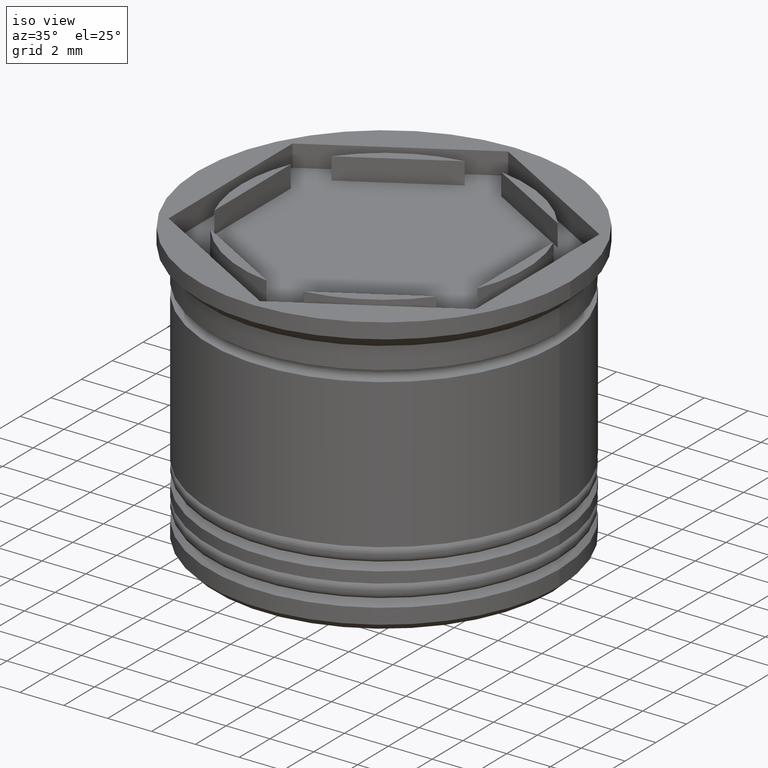
[diagram: clean part render]
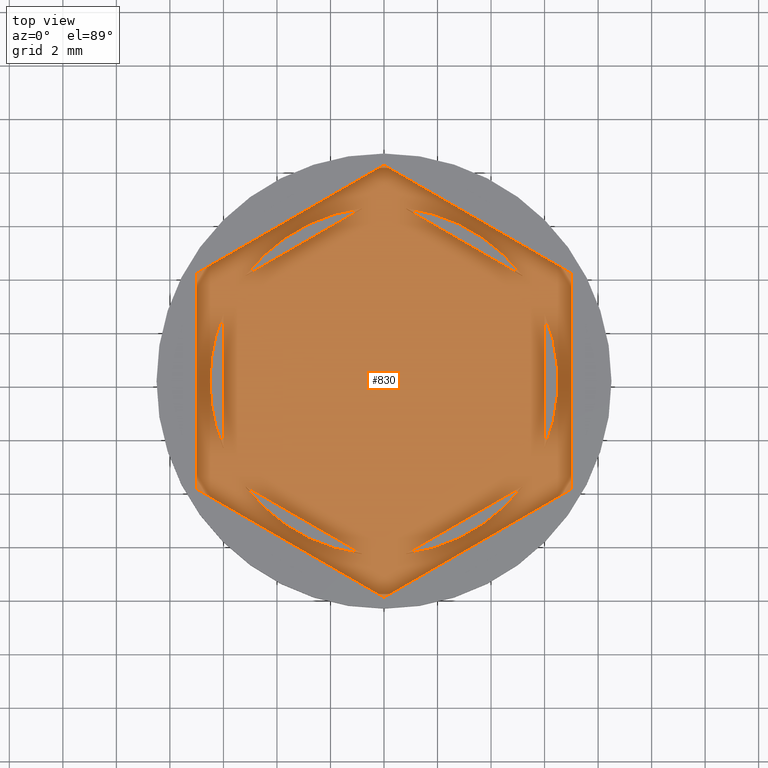
[diagram: tour spotlight — one face highlighted and labeled with its STEP entity id]
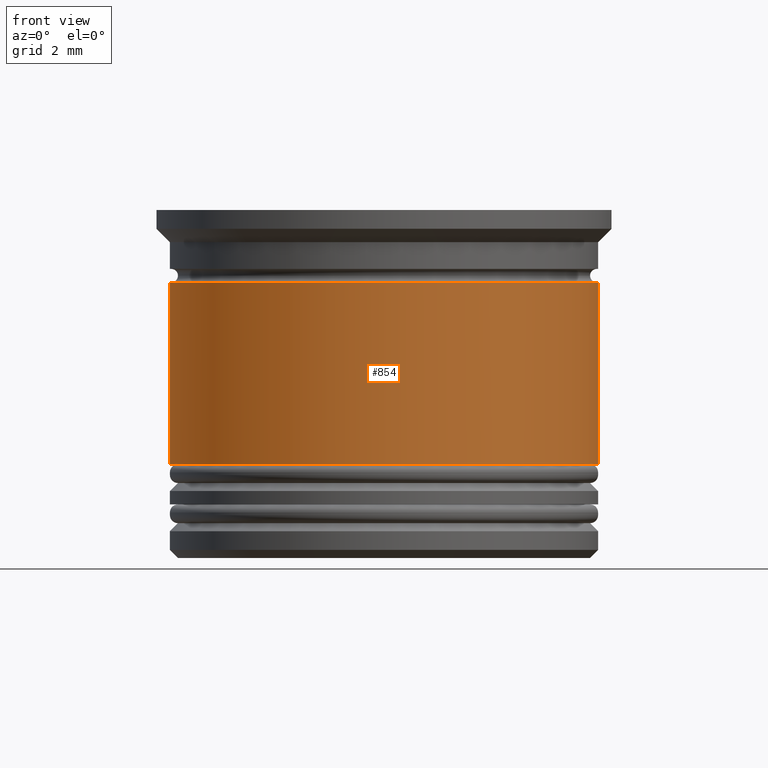
[diagram: tour spotlight — one face highlighted and labeled with its STEP entity id]
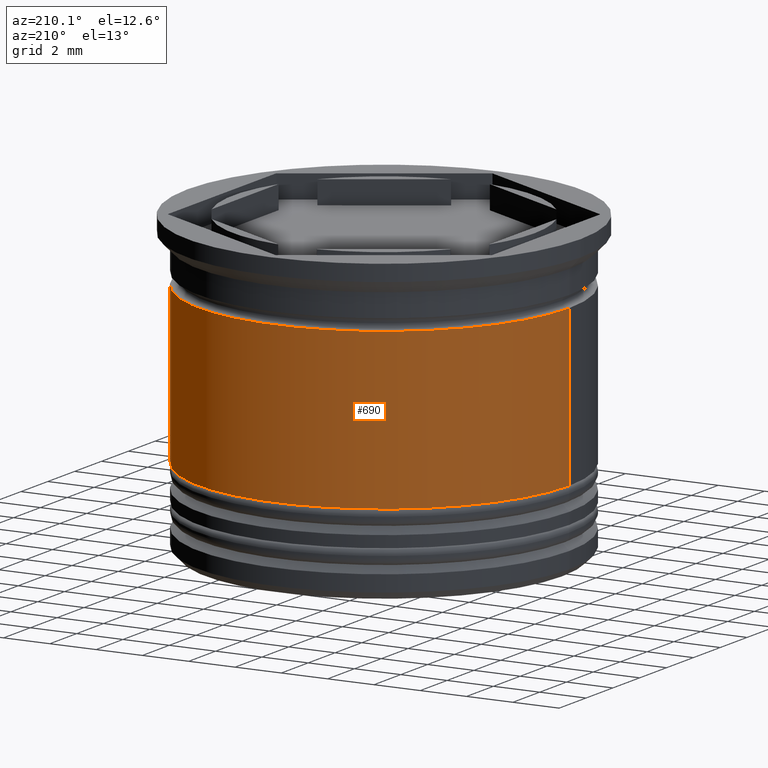
[diagram: tour spotlight — one face highlighted and labeled with its STEP entity id]
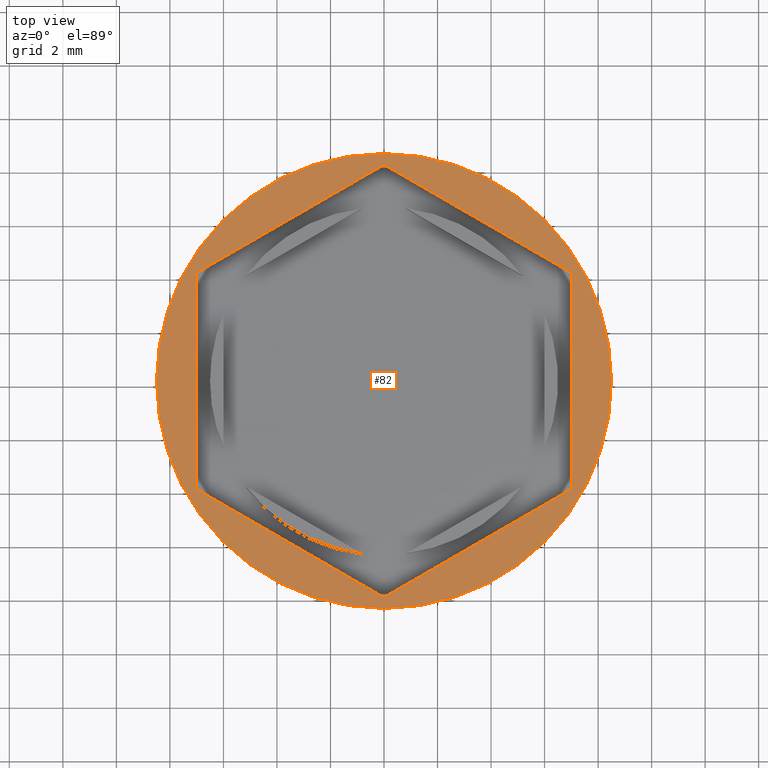
[diagram: tour spotlight — one face highlighted and labeled with its STEP entity id]
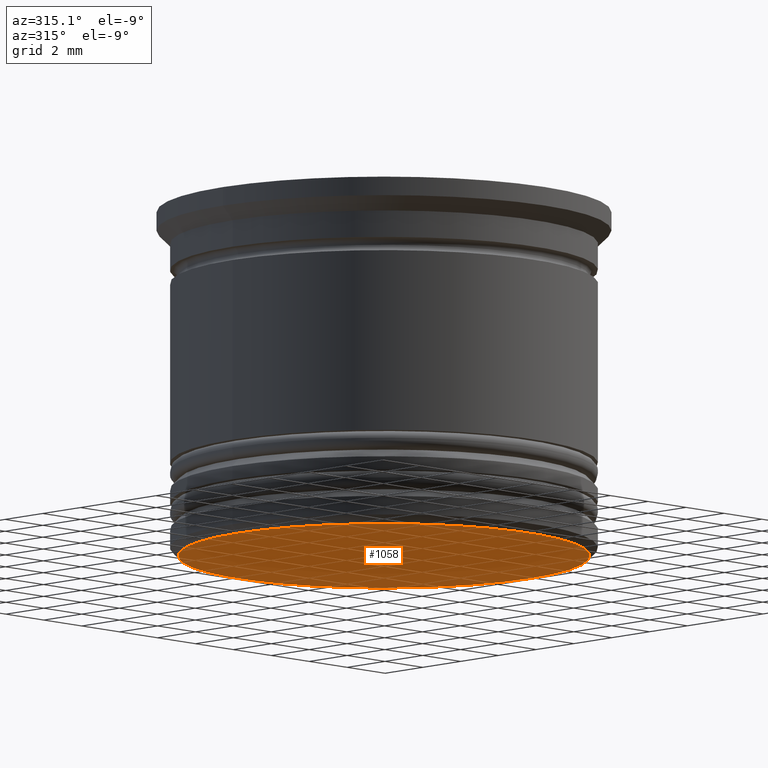
[diagram: tour spotlight — one face highlighted and labeled with its STEP entity id]
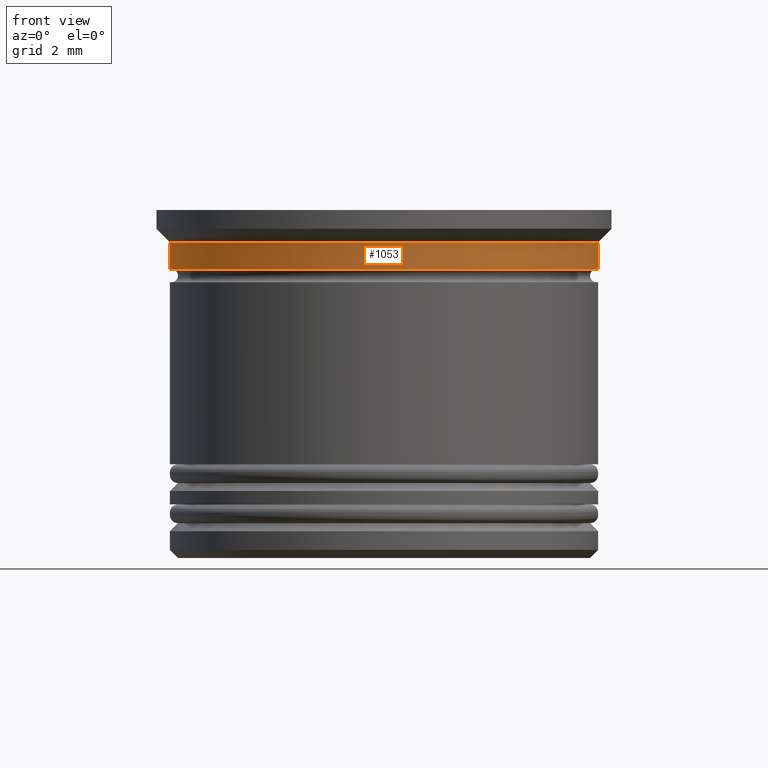
[diagram: tour spotlight — one face highlighted and labeled with its STEP entity id]
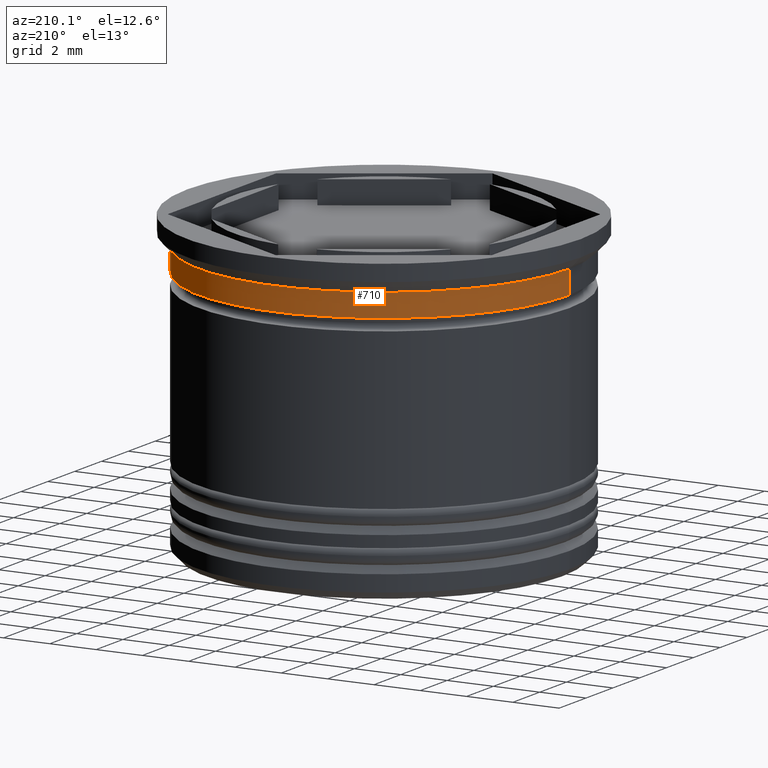
[diagram: tour spotlight — one face highlighted and labeled with its STEP entity id]
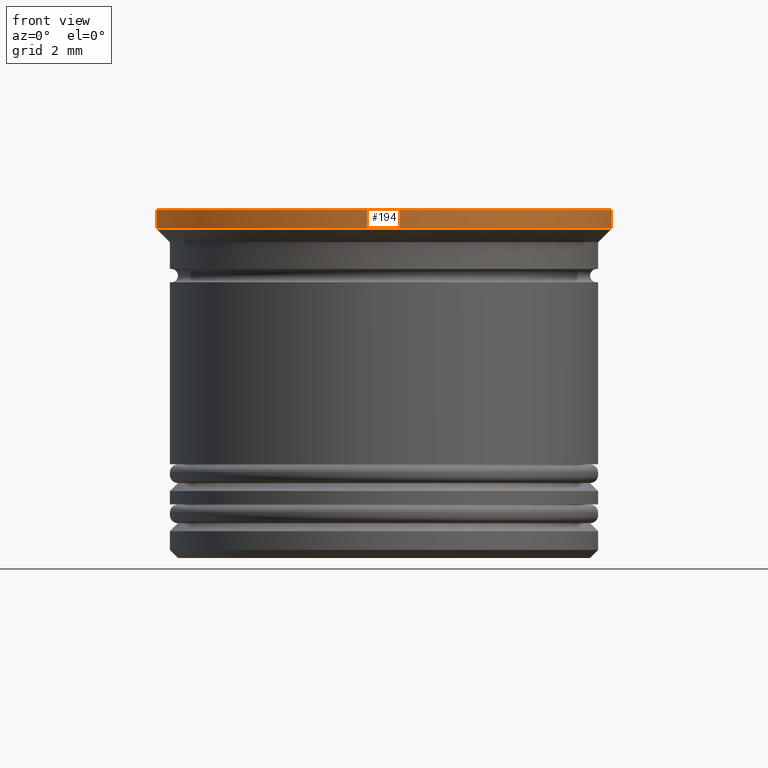
[diagram: tour spotlight — one face highlighted and labeled with its STEP entity id]
A machine part: a face-by-face anatomy tour. The part has 74 B-rep faces; the first image is the clean iso view, then the 8 largest visible faces are spotlighted one at a time (largest first), each with its STEP entity span.

Face 1 — top view, entity #830. In plain terms, the highlighted planar face has unit normal (0, 0, 1).
Definition (entity closure, byte-faithful):
#8 = CARTESIAN_POINT ( 'NONE',  ( -7.000000000000001776, -4.041451884327381450, -1.000000000000000000 ) ) ;
#27 = DIRECTION ( 'NONE',  ( 1.000000000000000000, 0.000000000000000000, -0.000000000000000000 ) ) ;
#31 = ORIENTED_EDGE ( 'NONE', *, *, #95, .F. ) ;
#39 = DIRECTION ( 'NONE',  ( 1.000000000000000000, 0.000000000000000000, 0.000000000000000000 ) ) ;
#42 = VECTOR ( 'NONE', #370, 999.9999999999998863 ) ;
#48 = FACE_OUTER_BOUND ( 'NONE', #58, .T. ) ;
#58 = EDGE_LOOP ( 'NONE', ( #100, #1634, #528, #400, #231, #1128 ) ) ;
#65 = CARTESIAN_POINT ( 'NONE',  ( -4.336808689942017736E-16, -6.928203230275508773, -1.000000000000000888 ) ) ;
#71 = EDGE_LOOP ( 'NONE', ( #1965, #1047 ) ) ;
#93 = CARTESIAN_POINT ( 'NONE',  ( 0.000000000000000000, 0.000000000000000000, -1.000000000000000000 ) ) ;
#95 = EDGE_CURVE ( 'NONE', #96, #1611, #1401, .T. ) ;
#96 = VERTEX_POINT ( 'NONE', #931 ) ;
#100 = ORIENTED_EDGE ( 'NONE', *, *, #1208, .T. ) ;
#115 = VECTOR ( 'NONE', #1606, 999.9999999999998863 ) ;
#119 = CARTESIAN_POINT ( 'NONE',  ( 5.999999999999999112, -2.500000000000003109, -1.000000000000000888 ) ) ;
#175 = CIRCLE ( 'NONE', #1064, 6.500000000000000888 ) ;
#207 = VECTOR ( 'NONE', #1188, 1000.000000000000000 ) ;
#214 = CARTESIAN_POINT ( 'NONE',  ( 0.000000000000000000, 0.000000000000000000, -1.000000000000000000 ) ) ;
#231 = ORIENTED_EDGE ( 'NONE', *, *, #687, .T. ) ;
#243 = AXIS2_PLACEMENT_3D ( 'NONE', #93, #1420, #39 ) ;
#261 = CARTESIAN_POINT ( 'NONE',  ( -6.500000000000000888, 0.000000000000000000, -1.000000000000000000 ) ) ;
#267 = CARTESIAN_POINT ( 'NONE',  ( 0.8349364905389047298, -6.446152422706633800, -1.000000000000000888 ) ) ;
#268 = DIRECTION ( 'NONE',  ( 0.8660254037844388186, -0.4999999999999998335, 0.000000000000000000 ) ) ;
#275 = ORIENTED_EDGE ( 'NONE', *, *, #1576, .F. ) ;
#280 = AXIS2_PLACEMENT_3D ( 'NONE', #641, #1400, #1752 ) ;
#300 = EDGE_CURVE ( 'NONE', #1242, #1800, #417, .T. ) ;
#308 = CARTESIAN_POINT ( 'NONE',  ( -3.394223061414856671E-17, -8.082903768654762899, -1.000000000000000000 ) ) ;
#322 = CARTESIAN_POINT ( 'NONE',  ( 6.000000000000000888, 3.464101615137755719, -1.000000000000000888 ) ) ;
#328 = DIRECTION ( 'NONE',  ( 0.8660254037844387076, 0.4999999999999999445, -0.000000000000000000 ) ) ;
#329 = CARTESIAN_POINT ( 'NONE',  ( -7.000000000000001776, -4.041451884327381450, -1.000000000000000000 ) ) ;
#351 = VERTEX_POINT ( 'NONE', #437 ) ;
#366 = LINE ( 'NONE', #973, #115 ) ;
#367 = CARTESIAN_POINT ( 'NONE',  ( 0.000000000000000000, 0.000000000000000000, -1.000000000000000000 ) ) ;
#369 = VECTOR ( 'NONE', #1717, 1000.000000000000000 ) ;
#370 = DIRECTION ( 'NONE',  ( -0.8660254037844388186, -0.4999999999999998335, 0.000000000000000000 ) ) ;
#372 = VECTOR ( 'NONE', #1348, 1000.000000000000114 ) ;
#397 = LINE ( 'NONE', #698, #573 ) ;
#400 = ORIENTED_EDGE ( 'NONE', *, *, #917, .T. ) ;
#411 = CIRCLE ( 'NONE', #1430, 6.500000000000000888 ) ;
#417 = LINE ( 'NONE', #921, #1880 ) ;
#418 = EDGE_CURVE ( 'NONE', #430, #351, #1859, .T. ) ;
#430 = VERTEX_POINT ( 'NONE', #889 ) ;
#434 = CARTESIAN_POINT ( 'NONE',  ( -6.000000000000000000, -3.464101615137753942, -1.000000000000000888 ) ) ;
#437 = CARTESIAN_POINT ( 'NONE',  ( 5.165063509461095492, 3.946152422706636909, -1.000000000000000888 ) ) ;
#440 = ORIENTED_EDGE ( 'NONE', *, *, #1284, .F. ) ;
#480 = FACE_BOUND ( 'NONE', #71, .T. ) ;
#490 = CARTESIAN_POINT ( 'NONE',  ( 0.000000000000000000, 0.000000000000000000, -1.000000000000000000 ) ) ;
#500 = DIRECTION ( 'NONE',  ( 0.000000000000000000, 0.000000000000000000, 1.000000000000000000 ) ) ;
#510 = VERTEX_POINT ( 'NONE', #1804 ) ;
#528 = ORIENTED_EDGE ( 'NONE', *, *, #300, .T. ) ;
#530 = CARTESIAN_POINT ( 'NONE',  ( 0.000000000000000000, 0.000000000000000000, -1.000000000000000000 ) ) ;
#573 = VECTOR ( 'NONE', #1458, 1000.000000000000000 ) ;
#579 = VERTEX_POINT ( 'NONE', #308 ) ;
#591 = CARTESIAN_POINT ( 'NONE',  ( -6.000000000000000000, 3.464101615137755275, -1.000000000000000888 ) ) ;
#595 = LINE ( 'NONE', #434, #1853 ) ;
#603 = AXIS2_PLACEMENT_3D ( 'NONE', #490, #500, #27 ) ;
#617 = LINE ( 'NONE', #8, #1060 ) ;
#618 = ORIENTED_EDGE ( 'NONE', *, *, #1866, .F. ) ;
#626 = CIRCLE ( 'NONE', #1698, 6.500000000000000888 ) ;
#641 = CARTESIAN_POINT ( 'NONE',  ( 0.000000000000000000, 0.000000000000000000, -1.000000000000000000 ) ) ;
#665 = CARTESIAN_POINT ( 'NONE',  ( 6.000000000000000888, 2.500000000000000444, -1.000000000000000888 ) ) ;
#669 = DIRECTION ( 'NONE',  ( 1.000000000000000000, 0.000000000000000000, 0.000000000000000000 ) ) ;
#671 = EDGE_CURVE ( 'NONE', #1340, #1372, #626, .T. ) ;
#687 = EDGE_CURVE ( 'NONE', #579, #848, #1181, .T. ) ;
#698 = CARTESIAN_POINT ( 'NONE',  ( 5.999999999999999112, -3.464101615137755719, -1.000000000000000888 ) ) ;
#716 = CARTESIAN_POINT ( 'NONE',  ( 7.000000000000001776, 4.041451884327382338, -1.000000000000000000 ) ) ;
#740 = CARTESIAN_POINT ( 'NONE',  ( -5.165063509461099045, -3.946152422706631580, -1.000000000000000888 ) ) ;
#748 = LINE ( 'NONE', #591, #207 ) ;
#779 = VECTOR ( 'NONE', #328, 999.9999999999998863 ) ;
#785 = CIRCLE ( 'NONE', #1166, 6.500000000000000888 ) ;
#827 = DIRECTION ( 'NONE',  ( 0.000000000000000000, 0.000000000000000000, 1.000000000000000000 ) ) ;
#830 = ADVANCED_FACE ( 'NONE', ( #480, #1075, #1871, #1682, #893, #1443, #48 ), #1107, .T. ) ;
#831 = LINE ( 'NONE', #65, #42 ) ;
#847 = DIRECTION ( 'NONE',  ( 0.8660254037844385966, 0.5000000000000001110, 0.000000000000000000 ) ) ;
#848 = VERTEX_POINT ( 'NONE', #1418 ) ;
#889 = CARTESIAN_POINT ( 'NONE',  ( 0.8349364905389047298, 6.446152422706633800, -1.000000000000000888 ) ) ;
#893 = FACE_BOUND ( 'NONE', #935, .T. ) ;
#917 = EDGE_CURVE ( 'NONE', #1800, #579, #617, .T. ) ;
#921 = CARTESIAN_POINT ( 'NONE',  ( -7.000000000000001776, 4.041451884327378785, -1.000000000000000000 ) ) ;
#923 = EDGE_CURVE ( 'NONE', #848, #510, #1235, .T. ) ;
#931 = CARTESIAN_POINT ( 'NONE',  ( -5.165063509461095492, 3.946152422706635132, -1.000000000000000888 ) ) ;
#935 = EDGE_LOOP ( 'NONE', ( #1367, #998, #938 ) ) ;
#938 = ORIENTED_EDGE ( 'NONE', *, *, #1780, .F. ) ;
#957 = EDGE_LOOP ( 'NONE', ( #275, #31 ) ) ;
#971 = CARTESIAN_POINT ( 'NONE',  ( 0.000000000000000000, 8.082903768654761123, -1.000000000000000000 ) ) ;
#973 = CARTESIAN_POINT ( 'NONE',  ( 0.000000000000000000, 8.082903768654761123, -1.000000000000000000 ) ) ;
#990 = ORIENTED_EDGE ( 'NONE', *, *, #671, .F. ) ;
#998 = ORIENTED_EDGE ( 'NONE', *, *, #1708, .F. ) ;
#1017 = CARTESIAN_POINT ( 'NONE',  ( 0.000000000000000000, 0.000000000000000000, -1.000000000000000000 ) ) ;
#1025 = VERTEX_POINT ( 'NONE', #971 ) ;
#1035 = VECTOR ( 'NONE', #268, 999.9999999999998863 ) ;
#1047 = ORIENTED_EDGE ( 'NONE', *, *, #418, .F. ) ;
#1048 = DIRECTION ( 'NONE',  ( 0.000000000000000000, 0.000000000000000000, 1.000000000000000000 ) ) ;
#1060 = VECTOR ( 'NONE', #1377, 1000.000000000000114 ) ;
#1064 = AXIS2_PLACEMENT_3D ( 'NONE', #1017, #1048, #1691 ) ;
#1072 = EDGE_CURVE ( 'NONE', #1468, #1249, #831, .T. ) ;
#1075 = FACE_BOUND ( 'NONE', #1986, .T. ) ;
#1098 = CIRCLE ( 'NONE', #1836, 6.500000000000000888 ) ;
#1107 = PLANE ( 'NONE',  #603 ) ;
#1109 = EDGE_CURVE ( 'NONE', #351, #430, #1945, .T. ) ;
#1128 = ORIENTED_EDGE ( 'NONE', *, *, #923, .T. ) ;
#1131 = CARTESIAN_POINT ( 'NONE',  ( 5.165063509461095492, -3.946152422706636909, -1.000000000000000888 ) ) ;
#1166 = AXIS2_PLACEMENT_3D ( 'NONE', #214, #827, #1444 ) ;
#1180 = DIRECTION ( 'NONE',  ( 1.000000000000000000, 0.000000000000000000, 0.000000000000000000 ) ) ;
#1181 = LINE ( 'NONE', #1668, #1760 ) ;
#1188 = DIRECTION ( 'NONE',  ( 0.000000000000000000, 1.000000000000000000, 0.000000000000000000 ) ) ;
#1201 = ORIENTED_EDGE ( 'NONE', *, *, #1654, .F. ) ;
#1208 = EDGE_CURVE ( 'NONE', #510, #1025, #1480, .T. ) ;
#1235 = LINE ( 'NONE', #1980, #369 ) ;
#1242 = VERTEX_POINT ( 'NONE', #1789 ) ;
#1249 = VERTEX_POINT ( 'NONE', #267 ) ;
#1268 = VERTEX_POINT ( 'NONE', #1500 ) ;
#1269 = VERTEX_POINT ( 'NONE', #119 ) ;
#1284 = EDGE_CURVE ( 'NONE', #1372, #1340, #595, .T. ) ;
#1316 = DIRECTION ( 'NONE',  ( -0.8660254037844387076, 0.4999999999999999445, 0.000000000000000000 ) ) ;
#1340 = VERTEX_POINT ( 'NONE', #740 ) ;
#1348 = DIRECTION ( 'NONE',  ( -0.8660254037844388186, 0.4999999999999996669, 0.000000000000000000 ) ) ;
#1352 = ORIENTED_EDGE ( 'NONE', *, *, #1072, .F. ) ;
#1367 = ORIENTED_EDGE ( 'NONE', *, *, #1474, .F. ) ;
#1372 = VERTEX_POINT ( 'NONE', #1485 ) ;
#1377 = DIRECTION ( 'NONE',  ( 0.8660254037844387076, -0.4999999999999998335, 0.000000000000000000 ) ) ;
#1400 = DIRECTION ( 'NONE',  ( 0.000000000000000000, 0.000000000000000000, 1.000000000000000000 ) ) ;
#1401 = LINE ( 'NONE', #1874, #779 ) ;
#1412 = DIRECTION ( 'NONE',  ( 0.000000000000000000, 0.000000000000000000, 1.000000000000000000 ) ) ;
#1418 = CARTESIAN_POINT ( 'NONE',  ( 7.000000000000000000, -4.041451884327380562, -1.000000000000000000 ) ) ;
#1420 = DIRECTION ( 'NONE',  ( 0.000000000000000000, 0.000000000000000000, 1.000000000000000000 ) ) ;
#1430 = AXIS2_PLACEMENT_3D ( 'NONE', #1542, #1527, #1180 ) ;
#1443 = FACE_BOUND ( 'NONE', #957, .T. ) ;
#1444 = DIRECTION ( 'NONE',  ( 1.000000000000000000, 0.000000000000000000, 0.000000000000000000 ) ) ;
#1458 = DIRECTION ( 'NONE',  ( -2.503857664561931390E-16, -1.000000000000000000, 0.000000000000000000 ) ) ;
#1468 = VERTEX_POINT ( 'NONE', #1131 ) ;
#1474 = EDGE_CURVE ( 'NONE', #1856, #1783, #1098, .T. ) ;
#1480 = LINE ( 'NONE', #716, #372 ) ;
#1485 = CARTESIAN_POINT ( 'NONE',  ( -0.8349364905389012881, -6.446152422706633800, -1.000000000000000888 ) ) ;
#1500 = CARTESIAN_POINT ( 'NONE',  ( -6.000000000000000000, -2.500000000000001776, -1.000000000000000888 ) ) ;
#1502 = CIRCLE ( 'NONE', #280, 6.500000000000000888 ) ;
#1507 = EDGE_LOOP ( 'NONE', ( #990, #440 ) ) ;
#1527 = DIRECTION ( 'NONE',  ( 0.000000000000000000, 0.000000000000000000, 1.000000000000000000 ) ) ;
#1542 = CARTESIAN_POINT ( 'NONE',  ( 0.000000000000000000, 0.000000000000000000, -1.000000000000000000 ) ) ;
#1576 = EDGE_CURVE ( 'NONE', #1611, #96, #785, .T. ) ;
#1581 = CARTESIAN_POINT ( 'NONE',  ( -0.8349364905389056180, 6.446152422706633800, -1.000000000000000888 ) ) ;
#1606 = DIRECTION ( 'NONE',  ( -0.8660254037844387076, -0.5000000000000001110, 0.000000000000000000 ) ) ;
#1611 = VERTEX_POINT ( 'NONE', #1581 ) ;
#1634 = ORIENTED_EDGE ( 'NONE', *, *, #1666, .T. ) ;
#1654 = EDGE_CURVE ( 'NONE', #1269, #1983, #1502, .T. ) ;
#1666 = EDGE_CURVE ( 'NONE', #1025, #1242, #366, .T. ) ;
#1668 = CARTESIAN_POINT ( 'NONE',  ( -3.394223061414856671E-17, -8.082903768654762899, -1.000000000000000000 ) ) ;
#1682 = FACE_BOUND ( 'NONE', #1507, .T. ) ;
#1691 = DIRECTION ( 'NONE',  ( 1.000000000000000000, 0.000000000000000000, 0.000000000000000000 ) ) ;
#1698 = AXIS2_PLACEMENT_3D ( 'NONE', #367, #1412, #1955 ) ;
#1706 = ORIENTED_EDGE ( 'NONE', *, *, #1722, .F. ) ;
#1708 = EDGE_CURVE ( 'NONE', #1268, #1856, #748, .T. ) ;
#1717 = DIRECTION ( 'NONE',  ( 2.146163712481655407E-16, 1.000000000000000000, 0.000000000000000000 ) ) ;
#1722 = EDGE_CURVE ( 'NONE', #1249, #1468, #411, .T. ) ;
#1752 = DIRECTION ( 'NONE',  ( 1.000000000000000000, 0.000000000000000000, 0.000000000000000000 ) ) ;
#1760 = VECTOR ( 'NONE', #847, 1000.000000000000000 ) ;
#1780 = EDGE_CURVE ( 'NONE', #1783, #1268, #175, .T. ) ;
#1783 = VERTEX_POINT ( 'NONE', #261 ) ;
#1789 = CARTESIAN_POINT ( 'NONE',  ( -7.000000000000001776, 4.041451884327378785, -1.000000000000000000 ) ) ;
#1800 = VERTEX_POINT ( 'NONE', #329 ) ;
#1804 = CARTESIAN_POINT ( 'NONE',  ( 7.000000000000001776, 4.041451884327382338, -1.000000000000000000 ) ) ;
#1835 = DIRECTION ( 'NONE',  ( 0.000000000000000000, -1.000000000000000000, 0.000000000000000000 ) ) ;
#1836 = AXIS2_PLACEMENT_3D ( 'NONE', #530, #1905, #669 ) ;
#1853 = VECTOR ( 'NONE', #1316, 999.9999999999998863 ) ;
#1856 = VERTEX_POINT ( 'NONE', #1900 ) ;
#1859 = LINE ( 'NONE', #322, #1035 ) ;
#1866 = EDGE_CURVE ( 'NONE', #1983, #1269, #397, .T. ) ;
#1871 = FACE_BOUND ( 'NONE', #1932, .T. ) ;
#1874 = CARTESIAN_POINT ( 'NONE',  ( 0.000000000000000000, 6.928203230275509661, -1.000000000000000888 ) ) ;
#1880 = VECTOR ( 'NONE', #1835, 1000.000000000000000 ) ;
#1900 = CARTESIAN_POINT ( 'NONE',  ( -6.000000000000000000, 2.500000000000001776, -1.000000000000000888 ) ) ;
#1905 = DIRECTION ( 'NONE',  ( 0.000000000000000000, 0.000000000000000000, 1.000000000000000000 ) ) ;
#1932 = EDGE_LOOP ( 'NONE', ( #1706, #1352 ) ) ;
#1945 = CIRCLE ( 'NONE', #243, 6.500000000000000888 ) ;
#1955 = DIRECTION ( 'NONE',  ( 1.000000000000000000, 0.000000000000000000, 0.000000000000000000 ) ) ;
#1965 = ORIENTED_EDGE ( 'NONE', *, *, #1109, .F. ) ;
#1980 = CARTESIAN_POINT ( 'NONE',  ( 7.000000000000000000, -4.041451884327380562, -1.000000000000000000 ) ) ;
#1983 = VERTEX_POINT ( 'NONE', #665 ) ;
#1986 = EDGE_LOOP ( 'NONE', ( #1201, #618 ) ) ;

Face 2 — front view, entity #854. In plain terms, the highlighted cylindrical surface (partial cylindrical patch) has radius 8 mm, axis along (-0, -0, 1).
Definition (entity closure, byte-faithful):
#59 = DIRECTION ( 'NONE',  ( -0.000000000000000000, -0.000000000000000000, 1.000000000000000000 ) ) ;
#72 = VERTEX_POINT ( 'NONE', #1712 ) ;
#198 = CIRCLE ( 'NONE', #625, 8.000000000000000000 ) ;
#225 = EDGE_CURVE ( 'NONE', #1917, #1953, #198, .T. ) ;
#230 = EDGE_CURVE ( 'NONE', #1553, #1953, #1299, .T. ) ;
#239 = DIRECTION ( 'NONE',  ( -0.000000000000000000, -0.000000000000000000, 1.000000000000000000 ) ) ;
#246 = ORIENTED_EDGE ( 'NONE', *, *, #1276, .F. ) ;
#277 = ORIENTED_EDGE ( 'NONE', *, *, #230, .T. ) ;
#286 = LINE ( 'NONE', #1193, #1330 ) ;
#442 = AXIS2_PLACEMENT_3D ( 'NONE', #982, #59, #520 ) ;
#489 = EDGE_LOOP ( 'NONE', ( #246, #1483, #277, #1785 ) ) ;
#520 = DIRECTION ( 'NONE',  ( 1.000000000000000000, 0.000000000000000000, 0.000000000000000000 ) ) ;
#547 = DIRECTION ( 'NONE',  ( -0.000000000000000000, -0.000000000000000000, 1.000000000000000000 ) ) ;
#596 = CARTESIAN_POINT ( 'NONE',  ( -8.000000000000000000, 9.797174393178825657E-16, -2.700000000000000178 ) ) ;
#625 = AXIS2_PLACEMENT_3D ( 'NONE', #708, #239, #852 ) ;
#654 = CARTESIAN_POINT ( 'NONE',  ( 8.000000000000001776, 0.000000000000000000, -9.500000000000000000 ) ) ;
#708 = CARTESIAN_POINT ( 'NONE',  ( 0.000000000000000000, 0.000000000000000000, -2.700000000000000178 ) ) ;
#852 = DIRECTION ( 'NONE',  ( 1.000000000000000000, 0.000000000000000000, 0.000000000000000000 ) ) ;
#854 = ADVANCED_FACE ( 'NONE', ( #1769 ), #1270, .T. ) ;
#881 = AXIS2_PLACEMENT_3D ( 'NONE', #1652, #1184, #1657 ) ;
#982 = CARTESIAN_POINT ( 'NONE',  ( 0.000000000000000000, 0.000000000000000000, 0.000000000000000000 ) ) ;
#1184 = DIRECTION ( 'NONE',  ( -0.000000000000000000, -0.000000000000000000, 1.000000000000000000 ) ) ;
#1193 = CARTESIAN_POINT ( 'NONE',  ( -8.000000000000000000, 9.797174393178825657E-16, 0.000000000000000000 ) ) ;
#1248 = EDGE_CURVE ( 'NONE', #72, #1553, #1763, .T. ) ;
#1270 = CYLINDRICAL_SURFACE ( 'NONE', #442, 8.000000000000000000 ) ;
#1276 = EDGE_CURVE ( 'NONE', #72, #1917, #286, .T. ) ;
#1283 = CARTESIAN_POINT ( 'NONE',  ( 8.000000000000000000, 0.000000000000000000, 0.000000000000000000 ) ) ;
#1299 = LINE ( 'NONE', #1283, #1825 ) ;
#1330 = VECTOR ( 'NONE', #1341, 1000.000000000000000 ) ;
#1341 = DIRECTION ( 'NONE',  ( -0.000000000000000000, -0.000000000000000000, 1.000000000000000000 ) ) ;
#1384 = CARTESIAN_POINT ( 'NONE',  ( 8.000000000000000000, 0.000000000000000000, -2.700000000000000178 ) ) ;
#1483 = ORIENTED_EDGE ( 'NONE', *, *, #1248, .T. ) ;
#1553 = VERTEX_POINT ( 'NONE', #654 ) ;
#1652 = CARTESIAN_POINT ( 'NONE',  ( 0.000000000000000000, 0.000000000000000000, -9.500000000000000000 ) ) ;
#1657 = DIRECTION ( 'NONE',  ( 1.000000000000000000, 0.000000000000000000, 0.000000000000000000 ) ) ;
#1712 = CARTESIAN_POINT ( 'NONE',  ( -8.000000000000001776, 9.797174393178827630E-16, -9.500000000000000000 ) ) ;
#1763 = CIRCLE ( 'NONE', #881, 8.000000000000001776 ) ;
#1769 = FACE_OUTER_BOUND ( 'NONE', #489, .T. ) ;
#1785 = ORIENTED_EDGE ( 'NONE', *, *, #225, .F. ) ;
#1825 = VECTOR ( 'NONE', #547, 1000.000000000000000 ) ;
#1917 = VERTEX_POINT ( 'NONE', #596 ) ;
#1953 = VERTEX_POINT ( 'NONE', #1384 ) ;

Face 3 — auxiliary view, entity #690. In plain terms, the highlighted cylindrical surface (partial cylindrical patch) has radius 8 mm, axis along (-0, -0, 1).
Definition (entity closure, byte-faithful):
#72 = VERTEX_POINT ( 'NONE', #1712 ) ;
#195 = ORIENTED_EDGE ( 'NONE', *, *, #230, .F. ) ;
#230 = EDGE_CURVE ( 'NONE', #1553, #1953, #1299, .T. ) ;
#264 = DIRECTION ( 'NONE',  ( 1.000000000000000000, 0.000000000000000000, 0.000000000000000000 ) ) ;
#286 = LINE ( 'NONE', #1193, #1330 ) ;
#420 = ORIENTED_EDGE ( 'NONE', *, *, #1276, .T. ) ;
#447 = FACE_OUTER_BOUND ( 'NONE', #497, .T. ) ;
#497 = EDGE_LOOP ( 'NONE', ( #1549, #420, #1295, #195 ) ) ;
#540 = EDGE_CURVE ( 'NONE', #1953, #1917, #1325, .T. ) ;
#547 = DIRECTION ( 'NONE',  ( -0.000000000000000000, -0.000000000000000000, 1.000000000000000000 ) ) ;
#560 = CARTESIAN_POINT ( 'NONE',  ( 0.000000000000000000, 0.000000000000000000, -9.500000000000000000 ) ) ;
#596 = CARTESIAN_POINT ( 'NONE',  ( -8.000000000000000000, 9.797174393178825657E-16, -2.700000000000000178 ) ) ;
#611 = DIRECTION ( 'NONE',  ( -0.000000000000000000, -0.000000000000000000, 1.000000000000000000 ) ) ;
#654 = CARTESIAN_POINT ( 'NONE',  ( 8.000000000000001776, 0.000000000000000000, -9.500000000000000000 ) ) ;
#690 = ADVANCED_FACE ( 'NONE', ( #447 ), #1830, .T. ) ;
#928 = CARTESIAN_POINT ( 'NONE',  ( 0.000000000000000000, 0.000000000000000000, -2.700000000000000178 ) ) ;
#943 = DIRECTION ( 'NONE',  ( 1.000000000000000000, 0.000000000000000000, 0.000000000000000000 ) ) ;
#1001 = CARTESIAN_POINT ( 'NONE',  ( 0.000000000000000000, 0.000000000000000000, 0.000000000000000000 ) ) ;
#1093 = AXIS2_PLACEMENT_3D ( 'NONE', #928, #1546, #943 ) ;
#1149 = DIRECTION ( 'NONE',  ( -0.000000000000000000, -0.000000000000000000, 1.000000000000000000 ) ) ;
#1193 = CARTESIAN_POINT ( 'NONE',  ( -8.000000000000000000, 9.797174393178825657E-16, 0.000000000000000000 ) ) ;
#1199 = AXIS2_PLACEMENT_3D ( 'NONE', #560, #611, #1840 ) ;
#1276 = EDGE_CURVE ( 'NONE', #72, #1917, #286, .T. ) ;
#1283 = CARTESIAN_POINT ( 'NONE',  ( 8.000000000000000000, 0.000000000000000000, 0.000000000000000000 ) ) ;
#1295 = ORIENTED_EDGE ( 'NONE', *, *, #540, .F. ) ;
#1299 = LINE ( 'NONE', #1283, #1825 ) ;
#1302 = EDGE_CURVE ( 'NONE', #1553, #72, #1535, .T. ) ;
#1325 = CIRCLE ( 'NONE', #1093, 8.000000000000000000 ) ;
#1330 = VECTOR ( 'NONE', #1341, 1000.000000000000000 ) ;
#1341 = DIRECTION ( 'NONE',  ( -0.000000000000000000, -0.000000000000000000, 1.000000000000000000 ) ) ;
#1384 = CARTESIAN_POINT ( 'NONE',  ( 8.000000000000000000, 0.000000000000000000, -2.700000000000000178 ) ) ;
#1535 = CIRCLE ( 'NONE', #1199, 8.000000000000001776 ) ;
#1546 = DIRECTION ( 'NONE',  ( -0.000000000000000000, -0.000000000000000000, 1.000000000000000000 ) ) ;
#1549 = ORIENTED_EDGE ( 'NONE', *, *, #1302, .T. ) ;
#1553 = VERTEX_POINT ( 'NONE', #654 ) ;
#1712 = CARTESIAN_POINT ( 'NONE',  ( -8.000000000000001776, 9.797174393178827630E-16, -9.500000000000000000 ) ) ;
#1825 = VECTOR ( 'NONE', #547, 1000.000000000000000 ) ;
#1830 = CYLINDRICAL_SURFACE ( 'NONE', #1911, 8.000000000000000000 ) ;
#1840 = DIRECTION ( 'NONE',  ( 1.000000000000000000, 0.000000000000000000, 0.000000000000000000 ) ) ;
#1911 = AXIS2_PLACEMENT_3D ( 'NONE', #1001, #1149, #264 ) ;
#1917 = VERTEX_POINT ( 'NONE', #596 ) ;
#1953 = VERTEX_POINT ( 'NONE', #1384 ) ;

Face 4 — top view, entity #82. In plain terms, the highlighted planar face has unit normal (0, -0, 1).
Definition (entity closure, byte-faithful):
#9 = CARTESIAN_POINT ( 'NONE',  ( -3.394223061414856671E-17, -8.082903768654762899, 0.000000000000000000 ) ) ;
#34 = VERTEX_POINT ( 'NONE', #41 ) ;
#35 = CARTESIAN_POINT ( 'NONE',  ( -7.000000000000001776, -4.041451884327381450, 0.000000000000000000 ) ) ;
#41 = CARTESIAN_POINT ( 'NONE',  ( 0.000000000000000000, 8.082903768654761123, 0.000000000000000000 ) ) ;
#82 = ADVANCED_FACE ( 'NONE', ( #648, #191 ), #1718, .T. ) ;
#122 = LINE ( 'NONE', #863, #209 ) ;
#129 = LINE ( 'NONE', #1931, #1632 ) ;
#157 = ORIENTED_EDGE ( 'NONE', *, *, #1525, .F. ) ;
#160 = ORIENTED_EDGE ( 'NONE', *, *, #1286, .T. ) ;
#176 = CARTESIAN_POINT ( 'NONE',  ( 0.000000000000000000, 0.000000000000000000, 0.000000000000000000 ) ) ;
#191 = FACE_OUTER_BOUND ( 'NONE', #1869, .T. ) ;
#209 = VECTOR ( 'NONE', #426, 999.9999999999998863 ) ;
#304 = VECTOR ( 'NONE', #1582, 1000.000000000000000 ) ;
#330 = AXIS2_PLACEMENT_3D ( 'NONE', #176, #1863, #643 ) ;
#376 = EDGE_LOOP ( 'NONE', ( #1369, #157, #1081, #858, #702, #455 ) ) ;
#380 = LINE ( 'NONE', #1258, #1200 ) ;
#396 = CARTESIAN_POINT ( 'NONE',  ( -7.000000000000001776, 4.041451884327378785, 0.000000000000000000 ) ) ;
#407 = DIRECTION ( 'NONE',  ( 1.000000000000000000, 0.000000000000000000, 0.000000000000000000 ) ) ;
#426 = DIRECTION ( 'NONE',  ( -0.8660254037844387076, -0.5000000000000001110, 0.000000000000000000 ) ) ;
#439 = VECTOR ( 'NONE', #1797, 1000.000000000000114 ) ;
#451 = EDGE_CURVE ( 'NONE', #1126, #1526, #129, .T. ) ;
#455 = ORIENTED_EDGE ( 'NONE', *, *, #1839, .F. ) ;
#458 = EDGE_CURVE ( 'NONE', #1526, #1670, #1197, .T. ) ;
#487 = EDGE_CURVE ( 'NONE', #1034, #1354, #1729, .T. ) ;
#555 = CARTESIAN_POINT ( 'NONE',  ( 0.000000000000000000, 0.000000000000000000, 0.000000000000000000 ) ) ;
#592 = LINE ( 'NONE', #1469, #439 ) ;
#623 = EDGE_CURVE ( 'NONE', #1670, #1794, #1737, .T. ) ;
#643 = DIRECTION ( 'NONE',  ( 1.000000000000000000, 0.000000000000000000, 0.000000000000000000 ) ) ;
#648 = FACE_BOUND ( 'NONE', #376, .T. ) ;
#682 = DIRECTION ( 'NONE',  ( 2.146163712481655407E-16, 1.000000000000000000, 0.000000000000000000 ) ) ;
#702 = ORIENTED_EDGE ( 'NONE', *, *, #451, .F. ) ;
#712 = EDGE_CURVE ( 'NONE', #1120, #34, #592, .T. ) ;
#858 = ORIENTED_EDGE ( 'NONE', *, *, #458, .F. ) ;
#863 = CARTESIAN_POINT ( 'NONE',  ( 0.000000000000000000, 8.082903768654761123, 0.000000000000000000 ) ) ;
#870 = DIRECTION ( 'NONE',  ( 0.000000000000000000, -1.000000000000000000, 0.000000000000000000 ) ) ;
#933 = ORIENTED_EDGE ( 'NONE', *, *, #487, .T. ) ;
#959 = CARTESIAN_POINT ( 'NONE',  ( 7.000000000000001776, 4.041451884327382338, 0.000000000000000000 ) ) ;
#972 = CIRCLE ( 'NONE', #1133, 8.500000000000000000 ) ;
#986 = CARTESIAN_POINT ( 'NONE',  ( -3.394223061414856671E-17, -8.082903768654762899, 0.000000000000000000 ) ) ;
#1034 = VERTEX_POINT ( 'NONE', #1280 ) ;
#1059 = VECTOR ( 'NONE', #1320, 1000.000000000000114 ) ;
#1081 = ORIENTED_EDGE ( 'NONE', *, *, #623, .F. ) ;
#1120 = VERTEX_POINT ( 'NONE', #959 ) ;
#1126 = VERTEX_POINT ( 'NONE', #396 ) ;
#1133 = AXIS2_PLACEMENT_3D ( 'NONE', #1948, #1798, #1346 ) ;
#1154 = DIRECTION ( 'NONE',  ( -0.000000000000000000, -0.000000000000000000, 1.000000000000000000 ) ) ;
#1197 = LINE ( 'NONE', #1968, #1059 ) ;
#1200 = VECTOR ( 'NONE', #682, 1000.000000000000000 ) ;
#1258 = CARTESIAN_POINT ( 'NONE',  ( 7.000000000000000000, -4.041451884327380562, 0.000000000000000000 ) ) ;
#1280 = CARTESIAN_POINT ( 'NONE',  ( 8.500000000000000000, 0.000000000000000000, 0.000000000000000000 ) ) ;
#1286 = EDGE_CURVE ( 'NONE', #1354, #1034, #972, .T. ) ;
#1320 = DIRECTION ( 'NONE',  ( 0.8660254037844387076, -0.4999999999999998335, 0.000000000000000000 ) ) ;
#1346 = DIRECTION ( 'NONE',  ( 1.000000000000000000, 0.000000000000000000, 0.000000000000000000 ) ) ;
#1354 = VERTEX_POINT ( 'NONE', #1964 ) ;
#1369 = ORIENTED_EDGE ( 'NONE', *, *, #712, .F. ) ;
#1469 = CARTESIAN_POINT ( 'NONE',  ( 7.000000000000001776, 4.041451884327382338, 0.000000000000000000 ) ) ;
#1525 = EDGE_CURVE ( 'NONE', #1794, #1120, #380, .T. ) ;
#1526 = VERTEX_POINT ( 'NONE', #35 ) ;
#1582 = DIRECTION ( 'NONE',  ( 0.8660254037844385966, 0.5000000000000001110, 0.000000000000000000 ) ) ;
#1632 = VECTOR ( 'NONE', #870, 1000.000000000000000 ) ;
#1670 = VERTEX_POINT ( 'NONE', #9 ) ;
#1709 = CARTESIAN_POINT ( 'NONE',  ( 7.000000000000000000, -4.041451884327380562, 0.000000000000000000 ) ) ;
#1718 = PLANE ( 'NONE',  #330 ) ;
#1729 = CIRCLE ( 'NONE', #1942, 8.500000000000000000 ) ;
#1737 = LINE ( 'NONE', #986, #304 ) ;
#1794 = VERTEX_POINT ( 'NONE', #1709 ) ;
#1797 = DIRECTION ( 'NONE',  ( -0.8660254037844388186, 0.4999999999999996669, 0.000000000000000000 ) ) ;
#1798 = DIRECTION ( 'NONE',  ( -0.000000000000000000, -0.000000000000000000, 1.000000000000000000 ) ) ;
#1839 = EDGE_CURVE ( 'NONE', #34, #1126, #122, .T. ) ;
#1863 = DIRECTION ( 'NONE',  ( 0.000000000000000000, -0.000000000000000000, 1.000000000000000000 ) ) ;
#1869 = EDGE_LOOP ( 'NONE', ( #933, #160 ) ) ;
#1931 = CARTESIAN_POINT ( 'NONE',  ( -7.000000000000001776, 4.041451884327378785, 0.000000000000000000 ) ) ;
#1942 = AXIS2_PLACEMENT_3D ( 'NONE', #555, #1154, #407 ) ;
#1948 = CARTESIAN_POINT ( 'NONE',  ( 0.000000000000000000, 0.000000000000000000, 0.000000000000000000 ) ) ;
#1964 = CARTESIAN_POINT ( 'NONE',  ( -8.500000000000000000, 1.040949779275250140E-15, 0.000000000000000000 ) ) ;
#1968 = CARTESIAN_POINT ( 'NONE',  ( -7.000000000000001776, -4.041451884327381450, 0.000000000000000000 ) ) ;

Face 5 — auxiliary view, entity #1058. In plain terms, the highlighted planar face has unit normal (0, 0, -1).
Definition (entity closure, byte-faithful):
#28 = PLANE ( 'NONE',  #1534 ) ;
#73 = DIRECTION ( 'NONE',  ( 0.000000000000000000, 0.000000000000000000, -1.000000000000000000 ) ) ;
#75 = FACE_OUTER_BOUND ( 'NONE', #1167, .T. ) ;
#242 = AXIS2_PLACEMENT_3D ( 'NONE', #362, #73, #925 ) ;
#276 = CIRCLE ( 'NONE', #242, 7.699999999999998401 ) ;
#362 = CARTESIAN_POINT ( 'NONE',  ( 0.000000000000000000, 0.000000000000000000, -13.00000000000000178 ) ) ;
#414 = DIRECTION ( 'NONE',  ( -1.000000000000000000, 0.000000000000000000, -0.000000000000000000 ) ) ;
#471 = ORIENTED_EDGE ( 'NONE', *, *, #1739, .T. ) ;
#485 = ORIENTED_EDGE ( 'NONE', *, *, #856, .T. ) ;
#542 = VERTEX_POINT ( 'NONE', #771 ) ;
#758 = CARTESIAN_POINT ( 'NONE',  ( 0.000000000000000000, 0.000000000000000000, -13.00000000000000178 ) ) ;
#765 = DIRECTION ( 'NONE',  ( -1.000000000000000000, 0.000000000000000000, 0.000000000000000000 ) ) ;
#771 = CARTESIAN_POINT ( 'NONE',  ( 7.699999999999998401, 0.000000000000000000, -13.00000000000000178 ) ) ;
#856 = EDGE_CURVE ( 'NONE', #542, #1692, #276, .T. ) ;
#912 = AXIS2_PLACEMENT_3D ( 'NONE', #758, #1826, #765 ) ;
#925 = DIRECTION ( 'NONE',  ( -1.000000000000000000, 0.000000000000000000, 0.000000000000000000 ) ) ;
#1041 = DIRECTION ( 'NONE',  ( 0.000000000000000000, 0.000000000000000000, -1.000000000000000000 ) ) ;
#1058 = ADVANCED_FACE ( 'NONE', ( #75 ), #28, .T. ) ;
#1167 = EDGE_LOOP ( 'NONE', ( #485, #471 ) ) ;
#1397 = CIRCLE ( 'NONE', #912, 7.699999999999998401 ) ;
#1534 = AXIS2_PLACEMENT_3D ( 'NONE', #1636, #1041, #414 ) ;
#1636 = CARTESIAN_POINT ( 'NONE',  ( 0.000000000000000000, 8.000000000000000000, -13.00000000000000178 ) ) ;
#1692 = VERTEX_POINT ( 'NONE', #1726 ) ;
#1726 = CARTESIAN_POINT ( 'NONE',  ( -7.699999999999998401, 9.613477373306721357E-16, -13.00000000000000178 ) ) ;
#1739 = EDGE_CURVE ( 'NONE', #1692, #542, #1397, .T. ) ;
#1826 = DIRECTION ( 'NONE',  ( 0.000000000000000000, 0.000000000000000000, -1.000000000000000000 ) ) ;

Face 6 — front view, entity #1053. In plain terms, the highlighted cylindrical surface (partial cylindrical patch) has radius 8 mm, axis along (-0, -0, 1).
Definition (entity closure, byte-faithful):
#15 = EDGE_CURVE ( 'NONE', #70, #1894, #1883, .T. ) ;
#36 = CYLINDRICAL_SURFACE ( 'NONE', #657, 8.000000000000000000 ) ;
#70 = VERTEX_POINT ( 'NONE', #1855 ) ;
#84 = VERTEX_POINT ( 'NONE', #1080 ) ;
#128 = DIRECTION ( 'NONE',  ( -0.000000000000000000, -0.000000000000000000, 1.000000000000000000 ) ) ;
#143 = CIRCLE ( 'NONE', #1255, 7.999999999999998224 ) ;
#219 = CARTESIAN_POINT ( 'NONE',  ( 8.000000000000000000, 0.000000000000000000, 0.000000000000000000 ) ) ;
#313 = ORIENTED_EDGE ( 'NONE', *, *, #15, .F. ) ;
#324 = EDGE_CURVE ( 'NONE', #70, #406, #402, .T. ) ;
#402 = CIRCLE ( 'NONE', #650, 8.000000000000000000 ) ;
#406 = VERTEX_POINT ( 'NONE', #1233 ) ;
#478 = CARTESIAN_POINT ( 'NONE',  ( 0.000000000000000000, 0.000000000000000000, -2.199999999999999734 ) ) ;
#511 = DIRECTION ( 'NONE',  ( -0.000000000000000000, -0.000000000000000000, 1.000000000000000000 ) ) ;
#525 = DIRECTION ( 'NONE',  ( -0.000000000000000000, -0.000000000000000000, 1.000000000000000000 ) ) ;
#597 = DIRECTION ( 'NONE',  ( 1.000000000000000000, 0.000000000000000000, 0.000000000000000000 ) ) ;
#599 = VECTOR ( 'NONE', #806, 1000.000000000000000 ) ;
#635 = CARTESIAN_POINT ( 'NONE',  ( -8.000000000000000000, 9.797174393178825657E-16, 0.000000000000000000 ) ) ;
#650 = AXIS2_PLACEMENT_3D ( 'NONE', #478, #128, #597 ) ;
#656 = CARTESIAN_POINT ( 'NONE',  ( 0.000000000000000000, 0.000000000000000000, 0.000000000000000000 ) ) ;
#657 = AXIS2_PLACEMENT_3D ( 'NONE', #656, #511, #985 ) ;
#745 = EDGE_LOOP ( 'NONE', ( #313, #1832, #1373, #1844 ) ) ;
#803 = FACE_OUTER_BOUND ( 'NONE', #745, .T. ) ;
#806 = DIRECTION ( 'NONE',  ( -0.000000000000000000, -0.000000000000000000, 1.000000000000000000 ) ) ;
#976 = LINE ( 'NONE', #219, #1568 ) ;
#985 = DIRECTION ( 'NONE',  ( 1.000000000000000000, 0.000000000000000000, 0.000000000000000000 ) ) ;
#1006 = EDGE_CURVE ( 'NONE', #1894, #84, #143, .T. ) ;
#1053 = ADVANCED_FACE ( 'NONE', ( #803 ), #36, .T. ) ;
#1080 = CARTESIAN_POINT ( 'NONE',  ( 7.999999999999998224, 0.000000000000000000, -1.199999999999999289 ) ) ;
#1132 = CARTESIAN_POINT ( 'NONE',  ( 0.000000000000000000, 0.000000000000000000, -1.199999999999999289 ) ) ;
#1148 = EDGE_CURVE ( 'NONE', #406, #84, #976, .T. ) ;
#1233 = CARTESIAN_POINT ( 'NONE',  ( 8.000000000000000000, 0.000000000000000000, -2.199999999999999734 ) ) ;
#1255 = AXIS2_PLACEMENT_3D ( 'NONE', #1132, #1743, #1879 ) ;
#1373 = ORIENTED_EDGE ( 'NONE', *, *, #1148, .T. ) ;
#1422 = CARTESIAN_POINT ( 'NONE',  ( -7.999999999999998224, 9.797174393178823685E-16, -1.199999999999999289 ) ) ;
#1568 = VECTOR ( 'NONE', #525, 1000.000000000000000 ) ;
#1743 = DIRECTION ( 'NONE',  ( -0.000000000000000000, -0.000000000000000000, 1.000000000000000000 ) ) ;
#1832 = ORIENTED_EDGE ( 'NONE', *, *, #324, .T. ) ;
#1844 = ORIENTED_EDGE ( 'NONE', *, *, #1006, .F. ) ;
#1855 = CARTESIAN_POINT ( 'NONE',  ( -8.000000000000000000, 9.797174393178825657E-16, -2.199999999999999734 ) ) ;
#1879 = DIRECTION ( 'NONE',  ( 1.000000000000000000, 0.000000000000000000, 0.000000000000000000 ) ) ;
#1883 = LINE ( 'NONE', #635, #599 ) ;
#1894 = VERTEX_POINT ( 'NONE', #1422 ) ;

Face 7 — auxiliary view, entity #710. In plain terms, the highlighted cylindrical surface (partial cylindrical patch) has radius 8 mm, axis along (-0, -0, 1).
Definition (entity closure, byte-faithful):
#15 = EDGE_CURVE ( 'NONE', #70, #1894, #1883, .T. ) ;
#70 = VERTEX_POINT ( 'NONE', #1855 ) ;
#84 = VERTEX_POINT ( 'NONE', #1080 ) ;
#98 = DIRECTION ( 'NONE',  ( -0.000000000000000000, -0.000000000000000000, 1.000000000000000000 ) ) ;
#112 = AXIS2_PLACEMENT_3D ( 'NONE', #1477, #98, #713 ) ;
#219 = CARTESIAN_POINT ( 'NONE',  ( 8.000000000000000000, 0.000000000000000000, 0.000000000000000000 ) ) ;
#285 = ORIENTED_EDGE ( 'NONE', *, *, #15, .T. ) ;
#406 = VERTEX_POINT ( 'NONE', #1233 ) ;
#525 = DIRECTION ( 'NONE',  ( -0.000000000000000000, -0.000000000000000000, 1.000000000000000000 ) ) ;
#559 = CYLINDRICAL_SURFACE ( 'NONE', #1564, 8.000000000000000000 ) ;
#599 = VECTOR ( 'NONE', #806, 1000.000000000000000 ) ;
#635 = CARTESIAN_POINT ( 'NONE',  ( -8.000000000000000000, 9.797174393178825657E-16, 0.000000000000000000 ) ) ;
#706 = FACE_OUTER_BOUND ( 'NONE', #807, .T. ) ;
#710 = ADVANCED_FACE ( 'NONE', ( #706 ), #559, .T. ) ;
#713 = DIRECTION ( 'NONE',  ( 1.000000000000000000, 0.000000000000000000, 0.000000000000000000 ) ) ;
#721 = DIRECTION ( 'NONE',  ( 1.000000000000000000, 0.000000000000000000, 0.000000000000000000 ) ) ;
#766 = EDGE_CURVE ( 'NONE', #84, #1894, #1851, .T. ) ;
#806 = DIRECTION ( 'NONE',  ( -0.000000000000000000, -0.000000000000000000, 1.000000000000000000 ) ) ;
#807 = EDGE_LOOP ( 'NONE', ( #1140, #285, #1696, #1943 ) ) ;
#888 = EDGE_CURVE ( 'NONE', #406, #70, #1731, .T. ) ;
#976 = LINE ( 'NONE', #219, #1568 ) ;
#1010 = DIRECTION ( 'NONE',  ( -0.000000000000000000, -0.000000000000000000, 1.000000000000000000 ) ) ;
#1037 = AXIS2_PLACEMENT_3D ( 'NONE', #1545, #1573, #1724 ) ;
#1080 = CARTESIAN_POINT ( 'NONE',  ( 7.999999999999998224, 0.000000000000000000, -1.199999999999999289 ) ) ;
#1140 = ORIENTED_EDGE ( 'NONE', *, *, #888, .T. ) ;
#1148 = EDGE_CURVE ( 'NONE', #406, #84, #976, .T. ) ;
#1170 = CARTESIAN_POINT ( 'NONE',  ( 0.000000000000000000, 0.000000000000000000, 0.000000000000000000 ) ) ;
#1233 = CARTESIAN_POINT ( 'NONE',  ( 8.000000000000000000, 0.000000000000000000, -2.199999999999999734 ) ) ;
#1422 = CARTESIAN_POINT ( 'NONE',  ( -7.999999999999998224, 9.797174393178823685E-16, -1.199999999999999289 ) ) ;
#1477 = CARTESIAN_POINT ( 'NONE',  ( 0.000000000000000000, 0.000000000000000000, -1.199999999999999289 ) ) ;
#1545 = CARTESIAN_POINT ( 'NONE',  ( 0.000000000000000000, 0.000000000000000000, -2.199999999999999734 ) ) ;
#1564 = AXIS2_PLACEMENT_3D ( 'NONE', #1170, #1010, #721 ) ;
#1568 = VECTOR ( 'NONE', #525, 1000.000000000000000 ) ;
#1573 = DIRECTION ( 'NONE',  ( -0.000000000000000000, -0.000000000000000000, 1.000000000000000000 ) ) ;
#1696 = ORIENTED_EDGE ( 'NONE', *, *, #766, .F. ) ;
#1724 = DIRECTION ( 'NONE',  ( 1.000000000000000000, 0.000000000000000000, 0.000000000000000000 ) ) ;
#1731 = CIRCLE ( 'NONE', #1037, 8.000000000000000000 ) ;
#1851 = CIRCLE ( 'NONE', #112, 7.999999999999998224 ) ;
#1855 = CARTESIAN_POINT ( 'NONE',  ( -8.000000000000000000, 9.797174393178825657E-16, -2.199999999999999734 ) ) ;
#1883 = LINE ( 'NONE', #635, #599 ) ;
#1894 = VERTEX_POINT ( 'NONE', #1422 ) ;
#1943 = ORIENTED_EDGE ( 'NONE', *, *, #1148, .F. ) ;

Face 8 — front view, entity #194. In plain terms, the highlighted cylindrical surface (partial cylindrical patch) has radius 8.5 mm, axis along (-0, -0, 1).
Definition (entity closure, byte-faithful):
#33 = ORIENTED_EDGE ( 'NONE', *, *, #1415, .T. ) ;
#67 = EDGE_CURVE ( 'NONE', #1957, #1354, #1379, .T. ) ;
#127 = DIRECTION ( 'NONE',  ( -1.000000000000000000, 0.000000000000000000, 0.000000000000000000 ) ) ;
#140 = EDGE_CURVE ( 'NONE', #1585, #1034, #310, .T. ) ;
#180 = CARTESIAN_POINT ( 'NONE',  ( -8.500000000000000000, 1.040949779275250140E-15, -0.6999999999999952927 ) ) ;
#194 = ADVANCED_FACE ( 'NONE', ( #205 ), #356, .T. ) ;
#205 = FACE_OUTER_BOUND ( 'NONE', #1044, .T. ) ;
#310 = LINE ( 'NONE', #404, #1092 ) ;
#356 = CYLINDRICAL_SURFACE ( 'NONE', #1792, 8.500000000000000000 ) ;
#399 = ORIENTED_EDGE ( 'NONE', *, *, #140, .T. ) ;
#404 = CARTESIAN_POINT ( 'NONE',  ( 8.500000000000000000, 0.000000000000000000, 0.000000000000000000 ) ) ;
#544 = ORIENTED_EDGE ( 'NONE', *, *, #1286, .F. ) ;
#550 = CARTESIAN_POINT ( 'NONE',  ( 8.500000000000000000, 0.000000000000000000, -0.6999999999999952927 ) ) ;
#606 = AXIS2_PLACEMENT_3D ( 'NONE', #1182, #1818, #127 ) ;
#972 = CIRCLE ( 'NONE', #1133, 8.500000000000000000 ) ;
#995 = DIRECTION ( 'NONE',  ( -0.000000000000000000, -0.000000000000000000, 1.000000000000000000 ) ) ;
#1003 = DIRECTION ( 'NONE',  ( -0.000000000000000000, -0.000000000000000000, 1.000000000000000000 ) ) ;
#1031 = VECTOR ( 'NONE', #1111, 1000.000000000000000 ) ;
#1034 = VERTEX_POINT ( 'NONE', #1280 ) ;
#1044 = EDGE_LOOP ( 'NONE', ( #1704, #33, #399, #544 ) ) ;
#1092 = VECTOR ( 'NONE', #1003, 1000.000000000000000 ) ;
#1111 = DIRECTION ( 'NONE',  ( -0.000000000000000000, -0.000000000000000000, 1.000000000000000000 ) ) ;
#1133 = AXIS2_PLACEMENT_3D ( 'NONE', #1948, #1798, #1346 ) ;
#1145 = CARTESIAN_POINT ( 'NONE',  ( 0.000000000000000000, 0.000000000000000000, 0.000000000000000000 ) ) ;
#1182 = CARTESIAN_POINT ( 'NONE',  ( 0.000000000000000000, 0.000000000000000000, -0.6999999999999952927 ) ) ;
#1227 = CARTESIAN_POINT ( 'NONE',  ( -8.500000000000000000, 1.040949779275250140E-15, 0.000000000000000000 ) ) ;
#1280 = CARTESIAN_POINT ( 'NONE',  ( 8.500000000000000000, 0.000000000000000000, 0.000000000000000000 ) ) ;
#1286 = EDGE_CURVE ( 'NONE', #1354, #1034, #972, .T. ) ;
#1346 = DIRECTION ( 'NONE',  ( 1.000000000000000000, 0.000000000000000000, 0.000000000000000000 ) ) ;
#1354 = VERTEX_POINT ( 'NONE', #1964 ) ;
#1379 = LINE ( 'NONE', #1227, #1031 ) ;
#1415 = EDGE_CURVE ( 'NONE', #1957, #1585, #1467, .T. ) ;
#1467 = CIRCLE ( 'NONE', #606, 8.500000000000000000 ) ;
#1585 = VERTEX_POINT ( 'NONE', #550 ) ;
#1629 = DIRECTION ( 'NONE',  ( 1.000000000000000000, 0.000000000000000000, 0.000000000000000000 ) ) ;
#1704 = ORIENTED_EDGE ( 'NONE', *, *, #67, .F. ) ;
#1792 = AXIS2_PLACEMENT_3D ( 'NONE', #1145, #995, #1629 ) ;
#1798 = DIRECTION ( 'NONE',  ( -0.000000000000000000, -0.000000000000000000, 1.000000000000000000 ) ) ;
#1818 = DIRECTION ( 'NONE',  ( -0.000000000000000000, -0.000000000000000000, 1.000000000000000000 ) ) ;
#1948 = CARTESIAN_POINT ( 'NONE',  ( 0.000000000000000000, 0.000000000000000000, 0.000000000000000000 ) ) ;
#1957 = VERTEX_POINT ( 'NONE', #180 ) ;
#1964 = CARTESIAN_POINT ( 'NONE',  ( -8.500000000000000000, 1.040949779275250140E-15, 0.000000000000000000 ) ) ;